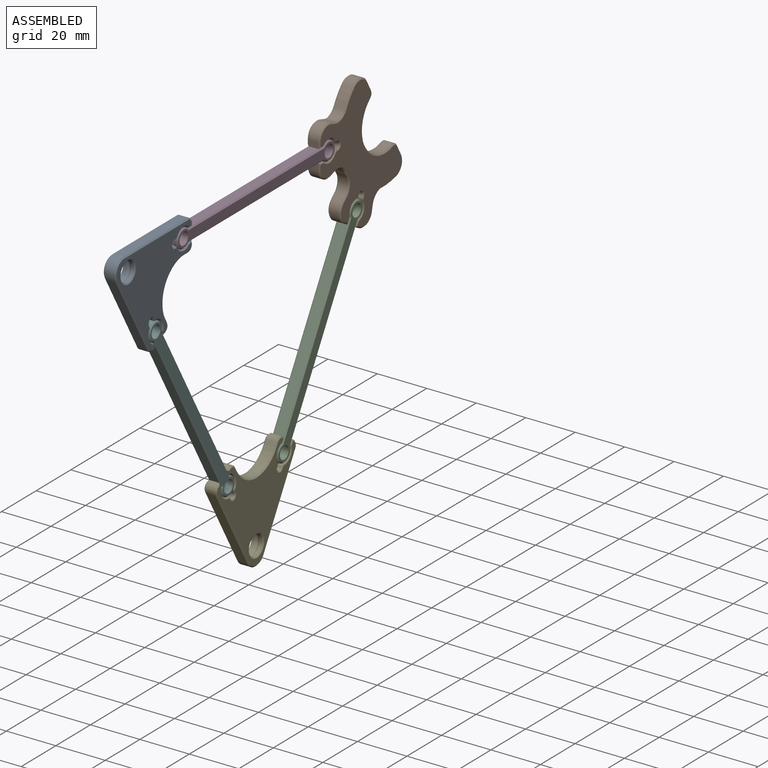
[diagram: assembled view]
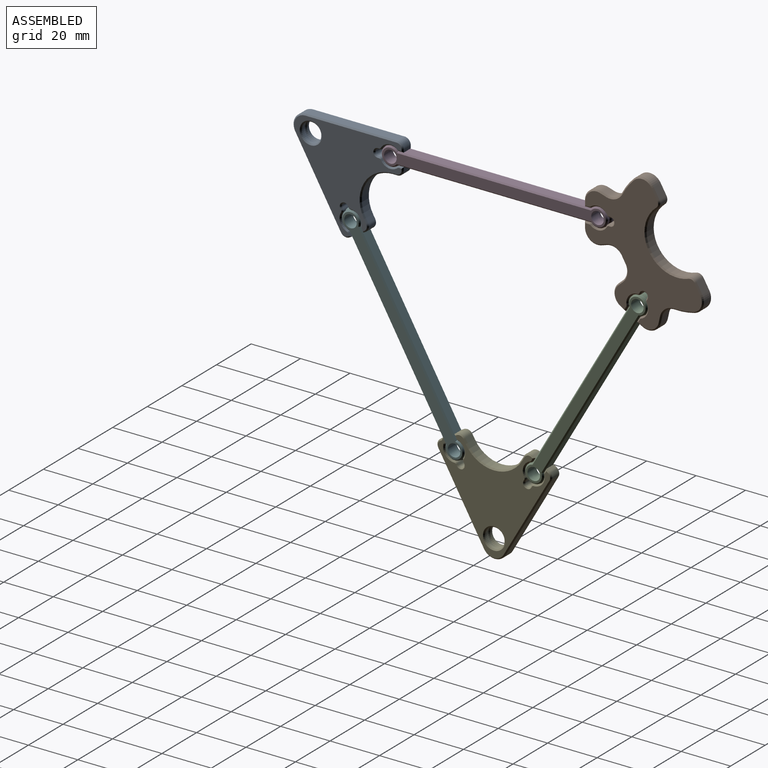
[diagram: assembled view, second angle]
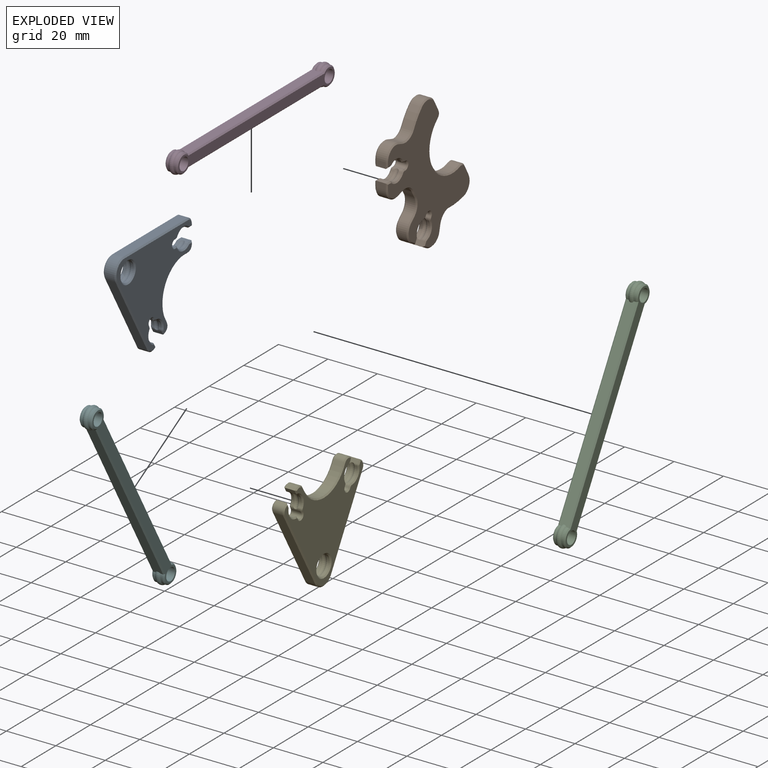
[diagram: exploded view]
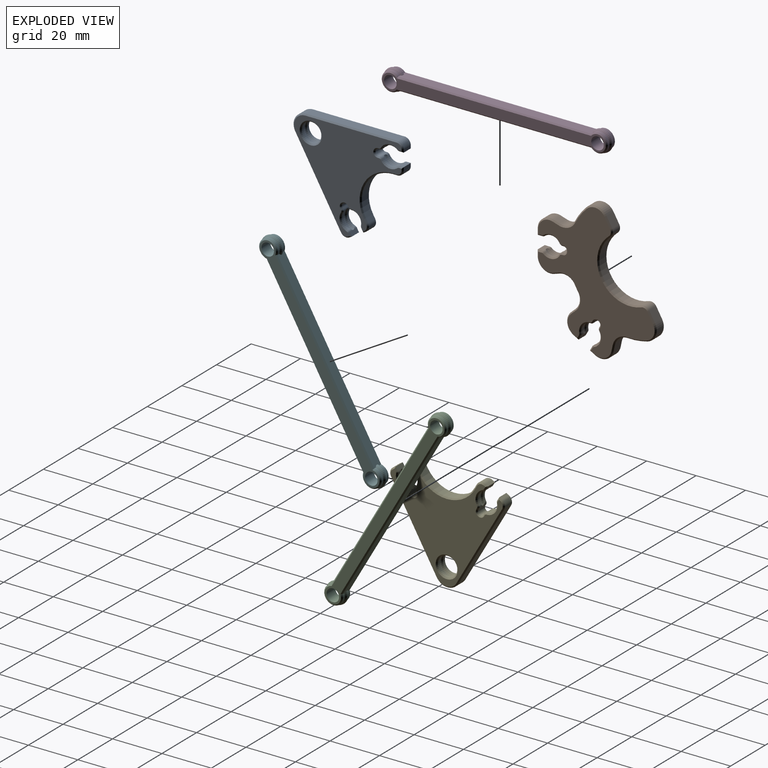
[diagram: exploded view, second angle]
ASSEMBLY  parts=6 mates=14
PART A: 123 faces, bbox 44.6x40.9x5.1 mm
  f0: cylinder r=3.94mm len=7.87mm, axis (0,0,1), area 27.8mm2, adj f34,f85
  f1: cylinder r=3.94mm len=6.01mm, axis (0,0,1), area 7.9mm2, adj f3,f41,f43,f55
  f2: cylinder r=3.94mm len=6.01mm, axis (0,0,1), area 7.9mm2, adj f3,f41,f43,f92
  f3: torus R=3.05mm, axis (0,0,-1), area 17.7mm2, adj f1,f2,f41,f43
  f4: cylinder r=3.94mm len=6.01mm, axis (0,0,1), area 7.9mm2, adj f14,f40,f44,f67
  f5: plane 4.06x1.67mm, normal (0,-1,0), area 6.8mm2, adj f7,f43,f51,f88
  f6: plane 4.06x1.67mm, normal (0,1,0), area 6.8mm2, adj f11,f44,f71,f108
  f7: plane 4.06x1.14mm, normal (-1,0,0), area 4.6mm2, adj f5,f47,f49,f86
  f8: plane 43.55x39.87mm, normal (0,0,1), area 752.5mm2, adj f86,f87,f88,f89,f90,f91,f92,f93
  f9: plane 43.55x39.87mm, normal (0,0,-1), area 752.5mm2, adj f49,f50,f51,f52,f53,f54,f55,f56
  f10: plane 4.06x1.75mm, normal (0,1,0), area 7.1mm2, adj f32,f47,f52,f89
  f11: plane 4.06x1.14mm, normal (-1,0,0), area 4.6mm2, adj f6,f48,f73,f110
  f12: plane 36.95x4.06mm, normal (0,-1,0), area 150.2mm2, adj f31,f48,f77,f114
  f13: cylinder r=3.94mm len=6.01mm, axis (0,0,1), area 7.9mm2, adj f14,f40,f44,f104
  f14: torus R=3.05mm, axis (0,0,-1), area 17.7mm2, adj f4,f13,f40,f44
  f15: plane 4.06x0.53mm, normal (0,1,0), area 2.2mm2, adj f40,f42,f63,f100
  f16: plane 4.06x0.53mm, normal (0,-1,0), area 2.2mm2, adj f41,f42,f59,f96
  f17: cylinder r=3.94mm len=5.74mm, axis (0,0,1), area 7.9mm2, adj f19,f35,f38,f78
  f18: cylinder r=3.94mm len=5.74mm, axis (0,0,1), area 7.9mm2, adj f19,f35,f38,f115
  f19: torus R=3.05mm, axis (0,0,-1), area 17.7mm2, adj f17,f18,f35,f38
  f20: cylinder r=3.94mm len=4.68mm, axis (0,0,1), area 7.9mm2, adj f28,f36,f37,f66
  f21: plane 4.06x1.45mm, normal (-0.87,-0.5,0), area 6.8mm2, adj f23,f35,f82,f119
  f22: plane 4.06x1.45mm, normal (0.87,0.5,0), area 6.8mm2, adj f25,f36,f62,f99
  f23: plane 4.06x0.99mm, normal (-0.5,0.87,0), area 4.6mm2, adj f21,f45,f84,f121
  f24: plane 32x18.47mm, normal (0.87,0.5,0), area 150.2mm2, adj f31,f45,f81,f118
  f25: plane 4.06x0.99mm, normal (-0.5,0.87,0), area 4.6mm2, adj f22,f46,f60,f97
  f26: plane 4.06x1.52mm, normal (-0.87,-0.5,0), area 7.1mm2, adj f32,f46,f56,f93
  f27: cylinder r=3.94mm len=4.68mm, axis (0,0,1), area 7.9mm2, adj f28,f36,f37,f103
  f28: torus R=3.05mm, axis (0,0,-1), area 17.7mm2, adj f20,f27,f36,f37
  f29: plane 4.06x0.46mm, normal (0.87,0.5,0), area 2.2mm2, adj f37,f39,f70,f107
  f30: plane 4.06x0.46mm, normal (-0.87,-0.5,0), area 2.2mm2, adj f38,f39,f74,f111
  f31: cylinder r=5.08mm len=7.62mm, axis (0,0,1), area 43.2mm2, adj f12,f24,f79,f116
  f32: cylinder r=12.7mm len=19.05mm, axis (0,0,1), area 108.1mm2, adj f10,f26,f54,f91
  f33: cylinder r=3.94mm len=7.87mm, axis (0,0,1), area 27.8mm2, adj f34,f122
  f34: torus R=3.05mm, axis (0,0,-1), area 53.2mm2, adj f0,f33
  f35: cylinder r=1.27mm len=4.06mm, axis (0,0,1), area 2.4mm2, adj f17,f18,f19,f21,f80,f117
  f36: cylinder r=1.27mm len=4.06mm, axis (0,0,1), area 2.4mm2, adj f20,f22,f27,f28,f64,f101
  f37: cylinder r=1.27mm len=4.06mm, axis (0,0,1), area 4.2mm2, adj f20,f27,f28,f29,f68,f105
  f38: cylinder r=1.27mm len=4.06mm, axis (0,0,1), area 4.2mm2, adj f17,f18,f19,f30,f76,f113
  f39: cylinder r=1.27mm len=4.06mm, axis (0,0,1), area 16.2mm2, adj f29,f30,f72,f109
  f40: cylinder r=1.27mm len=4.06mm, axis (0,0,1), area 4.2mm2, adj f4,f13,f14,f15,f65,f102
  f41: cylinder r=1.27mm len=4.06mm, axis (0,0,1), area 4.2mm2, adj f1,f2,f3,f16,f57,f94
  f42: cylinder r=1.27mm len=4.06mm, axis (0,0,-1), area 16.2mm2, adj f15,f16,f61,f98
  f43: cylinder r=1.27mm len=4.06mm, axis (0,0,1), area 2.4mm2, adj f1,f2,f3,f5,f53,f90
  f44: cylinder r=1.27mm len=4.06mm, axis (0,0,1), area 2.4mm2, adj f4,f6,f13,f14,f69,f106
  f45: cylinder r=2.54mm len=4.06mm, axis (0,0,-1), area 16.2mm2, adj f23,f24,f83,f120
  f46: cylinder r=2.54mm len=4.06mm, axis (0,0,1), area 16.2mm2, adj f25,f26,f58,f95
  f47: cylinder r=2.54mm len=4.06mm, axis (0,0,-1), area 16.2mm2, adj f7,f10,f50,f87
  f48: cylinder r=2.54mm len=4.06mm, axis (0,0,1), area 16.2mm2, adj f11,f12,f75,f112
  f49: plane 1.14x0.51mm, normal (-0.71,0,-0.71), area 0.6mm2, adj f7,f9,f50,f51
  f50: cone r=2.03mm half-angle=45deg, axis (0,0,1), area 2.6mm2, adj f9,f47,f49,f52
  f51: plane 1.67x0.51mm, normal (0,-0.71,-0.71), area 1mm2, adj f5,f9,f49,f53
  f52: plane 1.75x0.51mm, normal (0,0.71,-0.71), area 1.3mm2, adj f9,f10,f50,f54
  f53: cone r=0.76mm half-angle=45deg, axis (0,0,1), area 0.5mm2, adj f9,f43,f51,f55
  f54: cone r=12.7mm half-angle=45deg, axis (0,0,-1), area 19.5mm2, adj f9,f32,f52,f56
  f55: cone r=4.45mm half-angle=45deg, axis (0,0,-1), area 5.3mm2, adj f1,f9,f53,f57
  f56: plane 1.77x1.32mm, normal (-0.61,-0.35,-0.71), area 1.3mm2, adj f9,f26,f54,f58
  f57: cone r=0.76mm half-angle=45deg, axis (0,0,1), area 0.8mm2, adj f9,f41,f55,f59
  f58: cone r=2.03mm half-angle=45deg, axis (0,0,1), area 2.6mm2, adj f9,f46,f56,f60
  f59: plane 0.53x0.51mm, normal (0,-0.71,-0.71), area 0.4mm2, adj f9,f16,f57,f61
  f60: plane 1.01x0.99mm, normal (-0.35,0.61,-0.71), area 0.6mm2, adj f9,f25,f58,f62
  f61: cone r=1.78mm half-angle=45deg, axis (0,0,-1), area 3.4mm2, adj f9,f42,f59,f63
  f62: plane 1.7x1.02mm, normal (0.61,0.35,-0.71), area 1mm2, adj f9,f22,f60,f64
  f63: plane 0.53x0.51mm, normal (0,0.71,-0.71), area 0.4mm2, adj f9,f15,f61,f65
  f64: cone r=0.76mm half-angle=45deg, axis (0,0,1), area 0.5mm2, adj f9,f36,f62,f66
  f65: cone r=0.76mm half-angle=45deg, axis (0,0,1), area 0.8mm2, adj f9,f40,f63,f67
  f66: cone r=4.45mm half-angle=45deg, axis (0,0,-1), area 5.3mm2, adj f9,f20,f64,f68
  f67: cone r=4.45mm half-angle=45deg, axis (0,0,-1), area 5.3mm2, adj f4,f9,f65,f69
  f68: cone r=0.76mm half-angle=45deg, axis (0,0,1), area 0.8mm2, adj f9,f37,f66,f70
  f69: cone r=0.76mm half-angle=45deg, axis (0,0,1), area 0.5mm2, adj f9,f44,f67,f71
  f70: plane 0.72x0.71mm, normal (0.61,0.35,-0.71), area 0.4mm2, adj f9,f29,f68,f72
  f71: plane 1.67x0.51mm, normal (0,0.71,-0.71), area 1mm2, adj f6,f9,f69,f73
  f72: cone r=1.78mm half-angle=45deg, axis (0,0,-1), area 3.4mm2, adj f9,f39,f70,f74
  f73: plane 1.14x0.51mm, normal (-0.71,0,-0.71), area 0.6mm2, adj f9,f11,f71,f75
  f74: plane 0.72x0.71mm, normal (-0.61,-0.35,-0.71), area 0.4mm2, adj f9,f30,f72,f76
  f75: cone r=2.03mm half-angle=45deg, axis (0,0,1), area 2.6mm2, adj f9,f48,f73,f77
  f76: cone r=0.76mm half-angle=45deg, axis (0,0,1), area 0.8mm2, adj f9,f38,f74,f78
  f77: plane 36.95x0.51mm, normal (0,-0.71,-0.71), area 26.5mm2, adj f9,f12,f75,f79
  f78: cone r=4.45mm half-angle=45deg, axis (0,0,-1), area 5.3mm2, adj f9,f17,f76,f80
  f79: cone r=4.57mm half-angle=45deg, axis (0,0,1), area 7.3mm2, adj f9,f31,f77,f81
  f80: cone r=0.76mm half-angle=45deg, axis (0,0,1), area 0.5mm2, adj f9,f35,f78,f82
  f81: plane 32.25x18.91mm, normal (0.61,0.35,-0.71), area 26.5mm2, adj f9,f24,f79,f83
  f82: plane 1.45x1.28mm, normal (-0.61,-0.35,-0.71), area 1mm2, adj f9,f21,f80,f84
  f83: cone r=2.03mm half-angle=45deg, axis (0,0,1), area 2.6mm2, adj f9,f45,f81,f84
  f84: plane 1.24x0.76mm, normal (-0.35,0.61,-0.71), area 0.6mm2, adj f9,f23,f82,f83
  f85: cone r=3.94mm half-angle=45deg, axis (0,0,-1), area 18.9mm2, adj f0,f9
  f86: plane 1.14x0.51mm, normal (-0.71,0,0.71), area 0.6mm2, adj f7,f8,f87,f88
  f87: cone r=2.03mm half-angle=45deg, axis (0,0,-1), area 2.6mm2, adj f8,f47,f86,f89
  f88: plane 1.67x0.51mm, normal (0,-0.71,0.71), area 1mm2, adj f5,f8,f86,f90
  f89: plane 1.75x0.51mm, normal (0,0.71,0.71), area 1.3mm2, adj f8,f10,f87,f91
  f90: cone r=0.76mm half-angle=45deg, axis (0,0,-1), area 0.5mm2, adj f8,f43,f88,f92
  f91: cone r=12.7mm half-angle=45deg, axis (0,0,1), area 19.5mm2, adj f8,f32,f89,f93
  f92: cone r=3.94mm half-angle=45deg, axis (0,0,1), area 5.3mm2, adj f2,f8,f90,f94
  f93: plane 1.77x1.32mm, normal (-0.61,-0.35,0.71), area 1.3mm2, adj f8,f26,f91,f95
  f94: cone r=0.76mm half-angle=45deg, axis (0,0,-1), area 0.8mm2, adj f8,f41,f92,f96
  f95: cone r=2.03mm half-angle=45deg, axis (0,0,-1), area 2.6mm2, adj f8,f46,f93,f97
  f96: plane 0.53x0.51mm, normal (0,-0.71,0.71), area 0.4mm2, adj f8,f16,f94,f98
  f97: plane 1.01x0.99mm, normal (-0.35,0.61,0.71), area 0.6mm2, adj f8,f25,f95,f99
  f98: cone r=1.78mm half-angle=45deg, axis (0,0,1), area 3.4mm2, adj f8,f42,f96,f100
  f99: plane 1.7x1.02mm, normal (0.61,0.35,0.71), area 1mm2, adj f8,f22,f97,f101
  f100: plane 0.53x0.51mm, normal (0,0.71,0.71), area 0.4mm2, adj f8,f15,f98,f102
  f101: cone r=0.76mm half-angle=45deg, axis (0,0,-1), area 0.5mm2, adj f8,f36,f99,f103
  f102: cone r=0.76mm half-angle=45deg, axis (0,0,-1), area 0.8mm2, adj f8,f40,f100,f104
  f103: cone r=3.94mm half-angle=45deg, axis (0,0,1), area 5.3mm2, adj f8,f27,f101,f105
  f104: cone r=3.94mm half-angle=45deg, axis (0,0,1), area 5.3mm2, adj f8,f13,f102,f106
  f105: cone r=0.76mm half-angle=45deg, axis (0,0,-1), area 0.8mm2, adj f8,f37,f103,f107
  f106: cone r=0.76mm half-angle=45deg, axis (0,0,-1), area 0.5mm2, adj f8,f44,f104,f108
  f107: plane 0.72x0.71mm, normal (0.61,0.35,0.71), area 0.4mm2, adj f8,f29,f105,f109
  f108: plane 1.67x0.51mm, normal (0,0.71,0.71), area 1mm2, adj f6,f8,f106,f110
  f109: cone r=1.78mm half-angle=45deg, axis (0,0,1), area 3.4mm2, adj f8,f39,f107,f111
  f110: plane 1.14x0.51mm, normal (-0.71,0,0.71), area 0.6mm2, adj f8,f11,f108,f112
  f111: plane 0.72x0.71mm, normal (-0.61,-0.35,0.71), area 0.4mm2, adj f8,f30,f109,f113
  f112: cone r=2.03mm half-angle=45deg, axis (0,0,-1), area 2.6mm2, adj f8,f48,f110,f114
  f113: cone r=0.76mm half-angle=45deg, axis (0,0,-1), area 0.8mm2, adj f8,f38,f111,f115
  f114: plane 36.95x0.51mm, normal (0,-0.71,0.71), area 26.5mm2, adj f8,f12,f112,f116
  f115: cone r=3.94mm half-angle=45deg, axis (0,0,1), area 5.3mm2, adj f8,f18,f113,f117
  f116: cone r=4.57mm half-angle=45deg, axis (0,0,-1), area 7.3mm2, adj f8,f31,f114,f118
  f117: cone r=0.76mm half-angle=45deg, axis (0,0,-1), area 0.5mm2, adj f8,f35,f115,f119
  f118: plane 32.25x18.91mm, normal (0.61,0.35,0.71), area 26.5mm2, adj f8,f24,f116,f120
  f119: plane 1.45x1.28mm, normal (-0.61,-0.35,0.71), area 1mm2, adj f8,f21,f117,f121
  f120: cone r=2.03mm half-angle=45deg, axis (0,0,-1), area 2.6mm2, adj f8,f45,f118,f121
  f121: plane 1.24x0.76mm, normal (-0.35,0.61,0.71), area 0.6mm2, adj f8,f23,f119,f120
  f122: cone r=3.94mm half-angle=45deg, axis (0,0,1), area 18.9mm2, adj f8,f33
PART B: 154 faces, bbox 5.1x51.4x35.8 mm
  f0: cylinder r=3.94mm len=5.74mm, axis (-1,0,0), area 7.9mm2, adj f66,f68,f70,f91
  f1: cylinder r=3.94mm len=4.68mm, axis (-1,0,0), area 7.9mm2, adj f65,f69,f71,f92
  f2: cylinder r=3.94mm len=5.74mm, axis (-1,0,0), area 7.9mm2, adj f66,f68,f70,f81
  f3: cylinder r=3.94mm len=4.68mm, axis (-1,0,0), area 7.9mm2, adj f65,f69,f71,f80
  f4: cylinder r=25.4mm len=4.06mm, axis (-1,0,0), area 9.9mm2, adj f32,f74,f140,f149
  f5: cylinder r=3.94mm len=4.68mm, axis (-1,0,0), area 7.9mm2, adj f25,f27,f29,f50
  f6: cylinder r=3.94mm len=5.74mm, axis (-1,0,0), area 7.9mm2, adj f24,f28,f30,f51
  f7: cylinder r=3.94mm len=4.68mm, axis (-1,0,0), area 7.9mm2, adj f25,f27,f29,f40
  f8: cylinder r=3.94mm len=5.74mm, axis (-1,0,0), area 7.9mm2, adj f24,f28,f30,f39
  f9: cylinder r=25.4mm len=7.39mm, axis (-1,0,0), area 32.9mm2, adj f33,f99,f114,f131
  f10: cylinder r=25.4mm len=7.39mm, axis (-1,0,0), area 32.9mm2, adj f73,f98,f106,f123
  f11: plane 4.65x4.06mm, normal (0,0,1), area 18.9mm2, adj f98,f100,f108,f125
  f12: cylinder r=12.7mm len=25.04mm, axis (-1,0,0), area 144.9mm2, adj f100,f101,f110,f127
  f13: plane 4.65x4.06mm, normal (0,0,1), area 18.9mm2, adj f99,f101,f112,f129
  f14: plane 50.41x34.77mm, normal (1,0,0), area 973.7mm2, adj f46,f47,f48,f49,f50,f51,f52,f53
  f15: plane 50.41x34.77mm, normal (-1,0,0), area 973.7mm2, adj f35,f36,f37,f38,f39,f40,f41,f42
  f16: plane 4.06x1.76mm, normal (0,0.87,-0.5), area 8.2mm2, adj f21,f27,f36,f46
  f17: plane 4.06x1.76mm, normal (0,-0.87,0.5), area 8.2mm2, adj f18,f28,f35,f47
  f18: plane 4.06x2.04mm, normal (0,-0.5,-0.87), area 9.6mm2, adj f17,f31,f136,f153
  f19: plane 4.06x2.44mm, normal (0,0.98,-0.21), area 10.1mm2, adj f31,f32,f138,f151
  f20: plane 4.06x1.84mm, normal (0,-0.67,0.74), area 10.1mm2, adj f33,f34,f116,f133
  f21: plane 4.06x2.04mm, normal (0,-0.5,-0.87), area 9.6mm2, adj f16,f34,f118,f135
  f22: plane 4.06x0.46mm, normal (0,0.87,-0.5), area 2.2mm2, adj f26,f29,f44,f54
  f23: plane 4.06x0.46mm, normal (0,-0.87,0.5), area 2.2mm2, adj f26,f30,f43,f55
  f24: torus R=3.05mm, axis (1,0,0), area 17.7mm2, adj f6,f8,f28,f30
  f25: torus R=3.05mm, axis (1,0,0), area 17.7mm2, adj f5,f7,f27,f29
  f26: cylinder r=1.27mm len=4.06mm, axis (1,0,0), area 16.2mm2, adj f22,f23,f45,f56
  f27: cylinder r=1.27mm len=4.06mm, axis (-1,0,0), area 2.4mm2, adj f5,f7,f16,f25,f38,f48
  f28: cylinder r=1.27mm len=4.06mm, axis (-1,0,0), area 2.4mm2, adj f6,f8,f17,f24,f37,f49
  f29: cylinder r=1.27mm len=4.06mm, axis (-1,0,0), area 4.2mm2, adj f5,f7,f22,f25,f42,f52
  f30: cylinder r=1.27mm len=4.06mm, axis (-1,0,0), area 4.2mm2, adj f6,f8,f23,f24,f41,f53
  f31: cylinder r=5.08mm len=7.5mm, axis (1,0,0), area 38.8mm2, adj f18,f19,f137,f152
  f32: cylinder r=5.08mm len=5.21mm, axis (-1,0,0), area 29mm2, adj f4,f19,f139,f150
  f33: cylinder r=5.08mm len=6.5mm, axis (-1,0,0), area 29mm2, adj f9,f20,f115,f132
  f34: cylinder r=5.08mm len=8.15mm, axis (-1,0,0), area 38.8mm2, adj f20,f21,f117,f134
  f35: plane 1.76x1.45mm, normal (-0.71,-0.61,0.35), area 1.3mm2, adj f15,f17,f37,f153
  f36: plane 2.01x1.2mm, normal (-0.71,0.61,-0.35), area 1.3mm2, adj f15,f16,f38,f135
  f37: cone r=0.76mm half-angle=45deg, axis (1,0,0), area 0.5mm2, adj f15,f28,f35,f39
  f38: cone r=0.76mm half-angle=45deg, axis (1,0,0), area 0.5mm2, adj f15,f27,f36,f40
  f39: cone r=4.45mm half-angle=45deg, axis (-1,0,0), area 5.3mm2, adj f8,f15,f37,f41
  f40: cone r=4.45mm half-angle=45deg, axis (-1,0,0), area 5.3mm2, adj f7,f15,f38,f42
  f41: cone r=0.76mm half-angle=45deg, axis (1,0,0), area 0.8mm2, adj f15,f30,f39,f43
  f42: cone r=0.76mm half-angle=45deg, axis (1,0,0), area 0.8mm2, adj f15,f29,f40,f44
  f43: plane 0.72x0.71mm, normal (-0.71,-0.61,0.35), area 0.4mm2, adj f15,f23,f41,f45
  f44: plane 0.72x0.71mm, normal (-0.71,0.61,-0.35), area 0.4mm2, adj f15,f22,f42,f45
  f45: cone r=1.78mm half-angle=45deg, axis (-1,0,0), area 3.4mm2, adj f15,f26,f43,f44
  f46: plane 2.01x1.2mm, normal (0.71,0.61,-0.35), area 1.3mm2, adj f14,f16,f48,f118
  f47: plane 1.76x1.45mm, normal (0.71,-0.61,0.35), area 1.3mm2, adj f14,f17,f49,f136
  f48: cone r=0.76mm half-angle=45deg, axis (-1,0,0), area 0.5mm2, adj f14,f27,f46,f50
  f49: cone r=0.76mm half-angle=45deg, axis (-1,0,0), area 0.5mm2, adj f14,f28,f47,f51
  f50: cone r=3.94mm half-angle=45deg, axis (1,0,0), area 5.3mm2, adj f5,f14,f48,f52
  f51: cone r=3.94mm half-angle=45deg, axis (1,0,0), area 5.3mm2, adj f6,f14,f49,f53
  f52: cone r=0.76mm half-angle=45deg, axis (-1,0,0), area 0.8mm2, adj f14,f29,f50,f54
  f53: cone r=0.76mm half-angle=45deg, axis (-1,0,0), area 0.8mm2, adj f14,f30,f51,f55
  f54: plane 0.72x0.71mm, normal (0.71,0.61,-0.35), area 0.4mm2, adj f14,f22,f52,f56
  f55: plane 0.72x0.71mm, normal (0.71,-0.61,0.35), area 0.4mm2, adj f14,f23,f53,f56
  f56: cone r=1.78mm half-angle=45deg, axis (1,0,0), area 3.4mm2, adj f14,f26,f54,f55
  f57: plane 4.06x1.76mm, normal (0,0.87,0.5), area 8.2mm2, adj f62,f68,f77,f87
  f58: plane 4.06x1.76mm, normal (0,-0.87,-0.5), area 8.2mm2, adj f59,f69,f76,f88
  f59: plane 4.06x2.04mm, normal (0,0.5,-0.87), area 9.6mm2, adj f58,f72,f102,f119
  f60: plane 4.06x1.84mm, normal (0,0.67,0.74), area 10.1mm2, adj f72,f73,f104,f121
  f61: plane 4.06x2.44mm, normal (0,-0.98,-0.21), area 10.1mm2, adj f74,f75,f142,f147
  f62: plane 4.06x2.04mm, normal (0,0.5,-0.87), area 9.6mm2, adj f57,f75,f144,f145
  f63: plane 4.06x0.46mm, normal (0,0.87,0.5), area 2.2mm2, adj f67,f70,f85,f95
  f64: plane 4.06x0.46mm, normal (0,-0.87,-0.5), area 2.2mm2, adj f67,f71,f84,f96
  f65: torus R=3.05mm, axis (1,0,0), area 17.7mm2, adj f1,f3,f69,f71
  f66: torus R=3.05mm, axis (1,0,0), area 17.7mm2, adj f0,f2,f68,f70
  f67: cylinder r=1.27mm len=4.06mm, axis (1,0,0), area 16.2mm2, adj f63,f64,f86,f97
  f68: cylinder r=1.27mm len=4.06mm, axis (-1,0,0), area 2.4mm2, adj f0,f2,f57,f66,f79,f89
  f69: cylinder r=1.27mm len=4.06mm, axis (-1,0,0), area 2.4mm2, adj f1,f3,f58,f65,f78,f90
  f70: cylinder r=1.27mm len=4.06mm, axis (-1,0,0), area 4.2mm2, adj f0,f2,f63,f66,f83,f93
  f71: cylinder r=1.27mm len=4.06mm, axis (-1,0,0), area 4.2mm2, adj f1,f3,f64,f65,f82,f94
  f72: cylinder r=5.08mm len=8.15mm, axis (1,0,0), area 38.8mm2, adj f59,f60,f103,f120
  f73: cylinder r=5.08mm len=6.5mm, axis (-1,0,0), area 29mm2, adj f10,f60,f105,f122
  f74: cylinder r=5.08mm len=5.21mm, axis (-1,0,0), area 29mm2, adj f4,f61,f141,f148
  f75: cylinder r=5.08mm len=7.5mm, axis (-1,0,0), area 38.8mm2, adj f61,f62,f143,f146
  f76: plane 2.01x1.2mm, normal (-0.71,-0.61,-0.35), area 1.3mm2, adj f15,f58,f78,f119
  f77: plane 1.76x1.45mm, normal (-0.71,0.61,0.35), area 1.3mm2, adj f15,f57,f79,f145
  f78: cone r=0.76mm half-angle=45deg, axis (1,0,0), area 0.5mm2, adj f15,f69,f76,f80
  f79: cone r=0.76mm half-angle=45deg, axis (1,0,0), area 0.5mm2, adj f15,f68,f77,f81
  f80: cone r=4.45mm half-angle=45deg, axis (-1,0,0), area 5.3mm2, adj f3,f15,f78,f82
  f81: cone r=4.45mm half-angle=45deg, axis (-1,0,0), area 5.3mm2, adj f2,f15,f79,f83
  f82: cone r=0.76mm half-angle=45deg, axis (1,0,0), area 0.8mm2, adj f15,f71,f80,f84
  f83: cone r=0.76mm half-angle=45deg, axis (1,0,0), area 0.8mm2, adj f15,f70,f81,f85
  f84: plane 0.72x0.71mm, normal (-0.71,-0.61,-0.35), area 0.4mm2, adj f15,f64,f82,f86
  f85: plane 0.72x0.71mm, normal (-0.71,0.61,0.35), area 0.4mm2, adj f15,f63,f83,f86
  f86: cone r=1.78mm half-angle=45deg, axis (-1,0,0), area 3.4mm2, adj f15,f67,f84,f85
  f87: plane 1.76x1.45mm, normal (0.71,0.61,0.35), area 1.3mm2, adj f14,f57,f89,f144
  f88: plane 2.01x1.2mm, normal (0.71,-0.61,-0.35), area 1.3mm2, adj f14,f58,f90,f102
  f89: cone r=0.76mm half-angle=45deg, axis (-1,0,0), area 0.5mm2, adj f14,f68,f87,f91
  f90: cone r=0.76mm half-angle=45deg, axis (-1,0,0), area 0.5mm2, adj f14,f69,f88,f92
  f91: cone r=3.94mm half-angle=45deg, axis (1,0,0), area 5.3mm2, adj f0,f14,f89,f93
  f92: cone r=3.94mm half-angle=45deg, axis (1,0,0), area 5.3mm2, adj f1,f14,f90,f94
  f93: cone r=0.76mm half-angle=45deg, axis (-1,0,0), area 0.8mm2, adj f14,f70,f91,f95
  f94: cone r=0.76mm half-angle=45deg, axis (-1,0,0), area 0.8mm2, adj f14,f71,f92,f96
  f95: plane 0.72x0.71mm, normal (0.71,0.61,0.35), area 0.4mm2, adj f14,f63,f93,f97
  f96: plane 0.72x0.71mm, normal (0.71,-0.61,-0.35), area 0.4mm2, adj f14,f64,f94,f97
  f97: cone r=1.78mm half-angle=45deg, axis (1,0,0), area 3.4mm2, adj f14,f67,f95,f96
  f98: cylinder r=5.08mm len=6.35mm, axis (-1,0,0), area 37.6mm2, adj f10,f11,f107,f124
  f99: cylinder r=5.08mm len=6.35mm, axis (-1,0,0), area 37.6mm2, adj f9,f13,f113,f130
  f100: cylinder r=2.54mm len=4.06mm, axis (-1,0,0), area 14.5mm2, adj f11,f12,f109,f126
  f101: cylinder r=2.54mm len=4.06mm, axis (-1,0,0), area 14.5mm2, adj f12,f13,f111,f128
  f102: plane 2.04x1.62mm, normal (0.71,0.35,-0.61), area 1.5mm2, adj f14,f59,f88,f103
  f103: cone r=4.57mm half-angle=45deg, axis (-1,0,0), area 6.5mm2, adj f14,f72,f102,f104
  f104: plane 2.19x2.06mm, normal (0.71,0.48,0.52), area 1.8mm2, adj f14,f60,f103,f105
  f105: cone r=5.59mm half-angle=45deg, axis (1,0,0), area 5.4mm2, adj f14,f73,f104,f106
  f106: cone r=24.89mm half-angle=45deg, axis (-1,0,0), area 5.8mm2, adj f10,f14,f105,f107
  f107: cone r=4.57mm half-angle=45deg, axis (-1,0,0), area 6.3mm2, adj f14,f98,f106,f108
  f108: plane 4.65x0.51mm, normal (0.71,0,0.71), area 3.3mm2, adj f11,f14,f107,f109
  f109: cone r=2.03mm half-angle=45deg, axis (-1,0,0), area 2.3mm2, adj f14,f100,f108,f110
  f110: cone r=12.7mm half-angle=45deg, axis (1,0,0), area 26.1mm2, adj f12,f14,f109,f111
  f111: cone r=2.03mm half-angle=45deg, axis (-1,0,0), area 2.3mm2, adj f14,f101,f110,f112
  f112: plane 4.65x0.51mm, normal (0.71,0,0.71), area 3.3mm2, adj f13,f14,f111,f113
  f113: cone r=4.57mm half-angle=45deg, axis (-1,0,0), area 6.3mm2, adj f14,f99,f112,f114
  f114: cone r=24.89mm half-angle=45deg, axis (-1,0,0), area 5.8mm2, adj f9,f14,f113,f115
  f115: cone r=5.59mm half-angle=45deg, axis (1,0,0), area 5.4mm2, adj f14,f33,f114,f116
  f116: plane 2.19x2.06mm, normal (0.71,-0.48,0.52), area 1.8mm2, adj f14,f20,f115,f117
  f117: cone r=4.57mm half-angle=45deg, axis (-1,0,0), area 6.5mm2, adj f14,f34,f116,f118
  f118: plane 2.04x1.62mm, normal (0.71,-0.35,-0.61), area 1.5mm2, adj f14,f21,f46,f117
  f119: plane 2.04x1.62mm, normal (-0.71,0.35,-0.61), area 1.5mm2, adj f15,f59,f76,f120
  f120: cone r=4.57mm half-angle=45deg, axis (1,0,0), area 6.5mm2, adj f15,f72,f119,f121
  f121: plane 2.19x2.06mm, normal (-0.71,0.48,0.52), area 1.8mm2, adj f15,f60,f120,f122
  f122: cone r=5.59mm half-angle=45deg, axis (-1,0,0), area 5.4mm2, adj f15,f73,f121,f123
  f123: cone r=25.4mm half-angle=45deg, axis (1,0,0), area 5.8mm2, adj f10,f15,f122,f124
  f124: cone r=4.57mm half-angle=45deg, axis (1,0,0), area 6.3mm2, adj f15,f98,f123,f125
  f125: plane 4.65x0.51mm, normal (-0.71,0,0.71), area 3.3mm2, adj f11,f15,f124,f126
  f126: cone r=2.03mm half-angle=45deg, axis (1,0,0), area 2.3mm2, adj f15,f100,f125,f127
  f127: cone r=13.21mm half-angle=45deg, axis (-1,0,0), area 26.1mm2, adj f12,f15,f126,f128
  f128: cone r=2.03mm half-angle=45deg, axis (1,0,0), area 2.3mm2, adj f15,f101,f127,f129
  f129: plane 4.65x0.51mm, normal (-0.71,0,0.71), area 3.3mm2, adj f13,f15,f128,f130
  f130: cone r=4.57mm half-angle=45deg, axis (1,0,0), area 6.3mm2, adj f15,f99,f129,f131
  f131: cone r=25.4mm half-angle=45deg, axis (1,0,0), area 5.8mm2, adj f9,f15,f130,f132
  f132: cone r=5.59mm half-angle=45deg, axis (-1,0,0), area 5.4mm2, adj f15,f33,f131,f133
  f133: plane 2.19x2.06mm, normal (-0.71,-0.48,0.52), area 1.8mm2, adj f15,f20,f132,f134
  f134: cone r=4.57mm half-angle=45deg, axis (1,0,0), area 6.5mm2, adj f15,f34,f133,f135
  f135: plane 2.04x1.62mm, normal (-0.71,-0.35,-0.61), area 1.5mm2, adj f15,f21,f36,f134
  f136: plane 2.3x1.37mm, normal (0.71,-0.35,-0.61), area 1.5mm2, adj f14,f18,f47,f137
  f137: cone r=4.57mm half-angle=45deg, axis (-1,0,0), area 6.5mm2, adj f14,f31,f136,f138
  f138: plane 2.55x1.03mm, normal (0.71,0.69,-0.15), area 1.8mm2, adj f14,f19,f137,f139
  f139: cone r=5.59mm half-angle=45deg, axis (1,0,0), area 5.4mm2, adj f14,f32,f138,f140
  f140: cone r=24.89mm half-angle=45deg, axis (-1,0,0), area 1.7mm2, adj f4,f14,f139,f141
  f141: cone r=5.59mm half-angle=45deg, axis (1,0,0), area 5.4mm2, adj f14,f74,f140,f142
  f142: plane 2.55x1.03mm, normal (0.71,-0.69,-0.15), area 1.8mm2, adj f14,f61,f141,f143
  f143: cone r=4.57mm half-angle=45deg, axis (-1,0,0), area 6.5mm2, adj f14,f75,f142,f144
  f144: plane 2.3x1.37mm, normal (0.71,0.35,-0.61), area 1.5mm2, adj f14,f62,f87,f143
  f145: plane 2.3x1.37mm, normal (-0.71,0.35,-0.61), area 1.5mm2, adj f15,f62,f77,f146
  f146: cone r=4.57mm half-angle=45deg, axis (1,0,0), area 6.5mm2, adj f15,f75,f145,f147
  f147: plane 2.55x1.03mm, normal (-0.71,-0.69,-0.15), area 1.8mm2, adj f15,f61,f146,f148
  f148: cone r=5.59mm half-angle=45deg, axis (-1,0,0), area 5.4mm2, adj f15,f74,f147,f149
  f149: cone r=25.4mm half-angle=45deg, axis (1,0,0), area 1.7mm2, adj f4,f15,f148,f150
  f150: cone r=5.59mm half-angle=45deg, axis (-1,0,0), area 5.4mm2, adj f15,f32,f149,f151
  f151: plane 2.55x1.03mm, normal (-0.71,0.69,-0.15), area 1.8mm2, adj f15,f19,f150,f152
  f152: cone r=4.57mm half-angle=45deg, axis (1,0,0), area 6.5mm2, adj f15,f31,f151,f153
  f153: plane 2.3x1.37mm, normal (-0.71,-0.35,-0.61), area 1.5mm2, adj f15,f18,f35,f152
PART C: 20 faces, bbox 9.4x93.2x5.1 mm
  f0: plane 78.14x4.06mm, normal (-1,0,0), area 315.7mm2, adj f5,f6,f7,f8,f9,f10,f13,f17
  f1: plane 78.14x4.06mm, normal (1,0,0), area 315.7mm2, adj f5,f6,f7,f8,f9,f10,f14,f18
  f2: plane 90.42x6.6mm, normal (0,0,1), area 343.6mm2, adj f4,f11,f16,f17,f18,f19
  f3: plane 90.42x6.6mm, normal (0,0,-1), area 343.6mm2, adj f4,f11,f12,f13,f14,f15
  f4: cylinder r=2.54mm len=5.08mm, axis (0,0,1), area 81.1mm2, adj f2,f3
  f5: cylinder r=3.81mm len=7.62mm, axis (0,0,1), area 18.7mm2, adj f0,f1,f6,f16
  f6: torus R=3.05mm, axis (0,0,1), area 48.4mm2, adj f0,f1,f5,f7
  f7: cylinder r=3.81mm len=7.62mm, axis (0,0,1), area 18.7mm2, adj f0,f1,f6,f12
  f8: cylinder r=3.81mm len=7.62mm, axis (0,0,1), area 18.7mm2, adj f0,f1,f9,f19
  f9: torus R=3.05mm, axis (0,0,1), area 48.4mm2, adj f0,f1,f8,f10
  f10: cylinder r=3.81mm len=7.62mm, axis (0,0,1), area 18.7mm2, adj f0,f1,f9,f15
  f11: cylinder r=2.54mm len=5.08mm, axis (0,0,1), area 81.1mm2, adj f2,f3
  f12: cone r=3.81mm half-angle=45deg, axis (0,0,1), area 12.5mm2, adj f3,f7,f13,f14
  f13: plane 78.63x0.52mm, normal (-0.71,0,-0.71), area 56.3mm2, adj f0,f3,f12,f15
  f14: plane 78.63x0.52mm, normal (0.71,0,-0.71), area 56.3mm2, adj f1,f3,f12,f15
  f15: cone r=3.3mm half-angle=45deg, axis (0,0,1), area 12.5mm2, adj f3,f10,f13,f14
  f16: cone r=3.3mm half-angle=45deg, axis (0,0,-1), area 12.5mm2, adj f2,f5,f17,f18
  f17: plane 78.63x0.52mm, normal (-0.71,0,0.71), area 56.3mm2, adj f0,f2,f16,f19
  f18: plane 78.63x0.52mm, normal (0.71,0,0.71), area 56.3mm2, adj f1,f2,f16,f19
  f19: cone r=3.81mm half-angle=45deg, axis (0,0,-1), area 12.5mm2, adj f2,f8,f17,f18
PART D: same geometry as C
PART E: same geometry as A
PART F: same geometry as C
PLACE A rot(axis=(-0.58,0.58,-0.58),120deg) t=(13.14,-109.8,56.37)mm
PLACE B rot(axis=(-1,0,0),60deg) t=(13.14,1.14,50.03)mm fixed
PLACE C rot(axis=(-0.65,0.38,-0.65),138.6deg) t=(13.14,-12.76,20.87)mm
PLACE D rot(axis=(0,1,0),90deg) t=(13.14,-114.88,52.56)mm
PLACE E rot(axis=(0.25,0.94,0.25),93.8deg) t=(13.14,-97.1,-49.24)mm
PLACE F rot(axis=(-0.45,0.77,-0.45),104.5deg) t=(13.14,-128.78,23.39)mm
MATE planar D.f2 <-> B.f14  axis (1,0,0) through (18.22,-72.97,50.02)mm
MATE planar C.f2 <-> B.f14  axis (1,0,0) through (18.22,-35.91,-14.16)mm
MATE cylindrical B.f0 <-> C.f4  axis (-1,0,0) through (14.21,-14.96,22.14)mm
MATE cylindrical D.f8 <-> B.f5  axis (1,0,0) through (15.68,-31.06,50.03)mm
MATE planar E.f8 <-> F.f2  axis (1,0,0) through (18.22,-72.96,-62.89)mm
MATE parallel D.f0 <-> A.f5  axis (0,0,1) through (15.68,-72.97,52.56)mm
MATE parallel A.f24 <-> F.f1  axis (0,-0.87,-0.5) through (15.68,-144.45,32.74)mm
MATE planar F.f2 <-> A.f8  axis (1,0,0) through (18.22,-110.02,-14.17)mm
MATE cylindrical C.f8 <-> E.f17  axis (1,0,0) through (18.22,-56.86,-50.46)mm
MATE cylindrical F.f8 <-> E.f1  axis (1,0,0) through (15.68,-89.06,-50.46)mm
MATE cylindrical A.f1 <-> D.f4  axis (1,0,0) through (17.15,-114.88,50.02)mm
MATE parallel E.f5 <-> F.f1  axis (0,-0.87,-0.5) through (15.68,-88.88,-45.46)mm
MATE cylindrical A.f17 <-> F.f4  axis (1,0,0) through (17.15,-130.98,22.12)mm
MATE planar A.f8 <-> D.f2  axis (1,0,0) through (18.22,-133.7,42.28)mm
